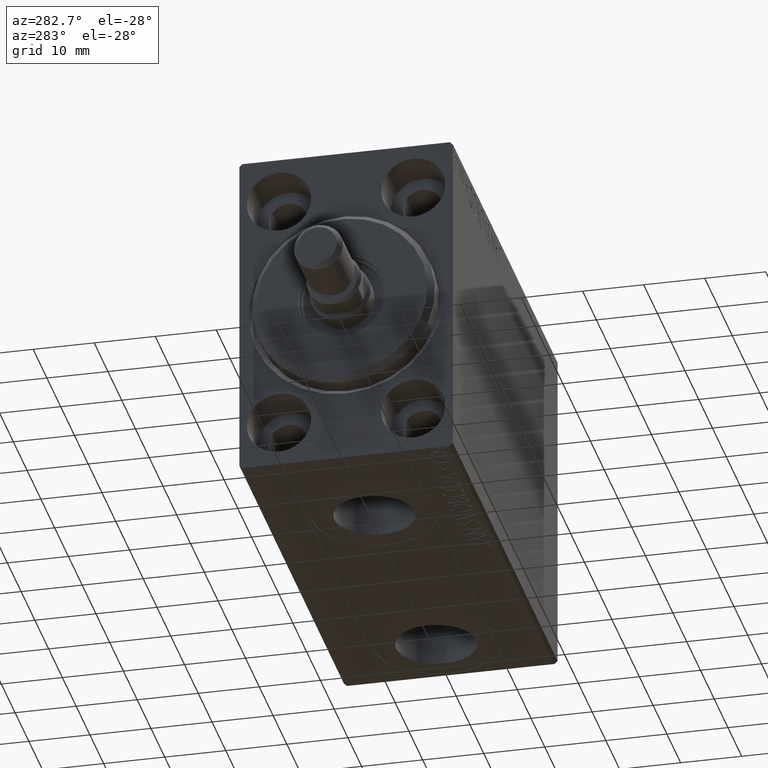
[diagram: clean part render]
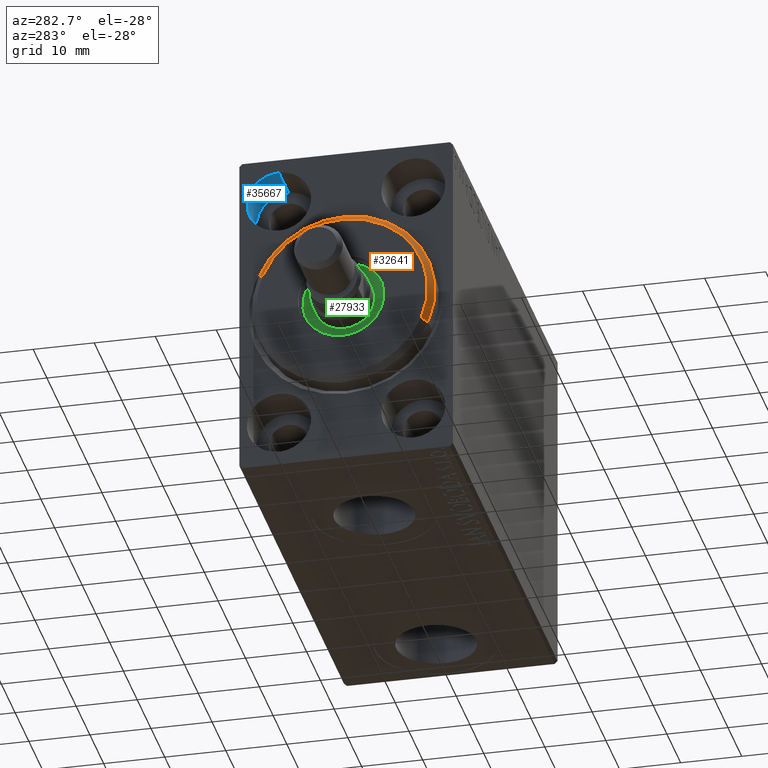
[diagram: same view with three faces highlighted in distinct colors, each labeled with its STEP entity id]
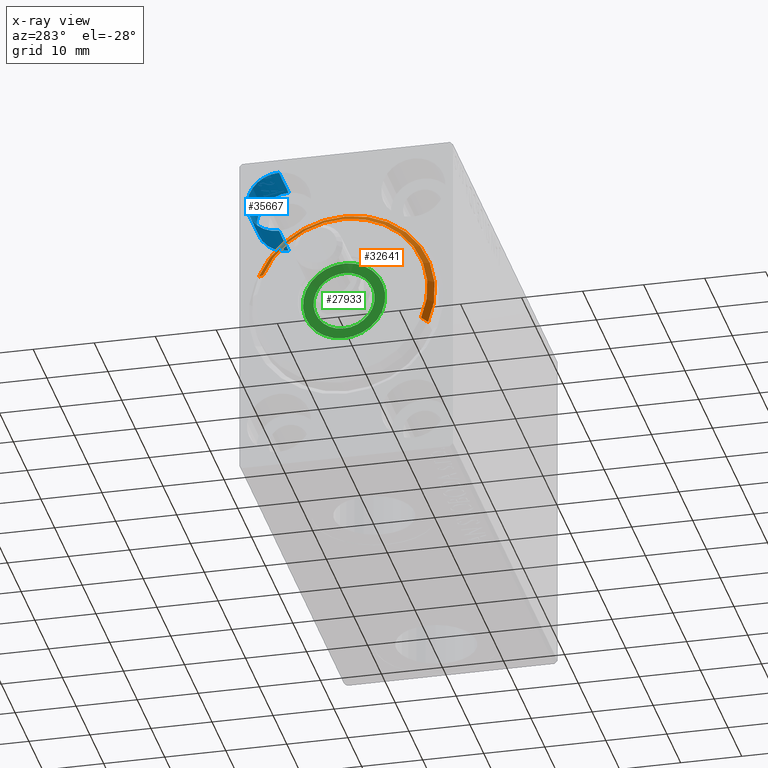
[diagram: x-ray of the same camera — body ghosted, the three highlighted faces saturated]
A machine part, auxiliary view with three faces highlighted in distinct colors.
The next image is the same camera in x-ray (body ghosted, the three faces saturated) — at least one of them is partly hidden behind the body in this view.
Their STEP definitions:

[orange] entity #32641 — the highlighted conical surface has half-angle 45 deg.
#913 = DIRECTION ( 'NONE',  ( 1.000000000000000000, -0.000000000000000000, 0.000000000000000000 ) ) ;
#2839 = LINE ( 'NONE', #16099, #33953 ) ;
#3835 = DIRECTION ( 'NONE',  ( -1.000000000000000000, 0.000000000000000000, 0.000000000000000000 ) ) ;
#4074 = CARTESIAN_POINT ( 'NONE',  ( 3.000000000000000000, 0.000000000000000000, 13.99999999999999645 ) ) ;
#4712 = EDGE_CURVE ( 'NONE', #33084, #22905, #41149, .T. ) ;
#5246 = ORIENTED_EDGE ( 'NONE', *, *, #10978, .F. ) ;
#6444 = AXIS2_PLACEMENT_3D ( 'NONE', #24966, #913, #14618 ) ;
#6449 = CIRCLE ( 'NONE', #7878, 15.00000000000000000 ) ;
#7878 = AXIS2_PLACEMENT_3D ( 'NONE', #20460, #3835, #24049 ) ;
#10978 = EDGE_CURVE ( 'NONE', #17280, #22905, #6449, .T. ) ;
#13729 = EDGE_CURVE ( 'NONE', #33084, #30123, #15770, .T. ) ;
#14618 = DIRECTION ( 'NONE',  ( 0.000000000000000000, 0.000000000000000000, -1.000000000000000000 ) ) ;
#15770 = CIRCLE ( 'NONE', #6444, 13.99999999999999645 ) ;
#16099 = CARTESIAN_POINT ( 'NONE',  ( 3.000000000000000000, 1.714505518806294244E-15, -13.99999999999999645 ) ) ;
#16146 = CONICAL_SURFACE ( 'NONE', #31207, 13.99999999999999645, 0.7853981633974473908 ) ;
#16354 = VECTOR ( 'NONE', #27845, 999.9999999999998863 ) ;
#17280 = VERTEX_POINT ( 'NONE', #29888 ) ;
#20460 = CARTESIAN_POINT ( 'NONE',  ( 1.999999999999995781, 0.000000000000000000, 0.000000000000000000 ) ) ;
#20817 = EDGE_CURVE ( 'NONE', #30123, #17280, #2839, .T. ) ;
#21342 = CARTESIAN_POINT ( 'NONE',  ( 3.000000000000000000, 1.775737858763662015E-15, -13.99999999999999645 ) ) ;
#22141 = DIRECTION ( 'NONE',  ( 0.000000000000000000, 0.000000000000000000, 1.000000000000000000 ) ) ;
#22905 = VERTEX_POINT ( 'NONE', #28284 ) ;
#23338 = EDGE_LOOP ( 'NONE', ( #40914, #29190, #42475, #5246 ) ) ;
#24049 = DIRECTION ( 'NONE',  ( 0.000000000000000000, 0.000000000000000000, -1.000000000000000000 ) ) ;
#24966 = CARTESIAN_POINT ( 'NONE',  ( 3.000000000000000000, 0.000000000000000000, 0.000000000000000000 ) ) ;
#25060 = CARTESIAN_POINT ( 'NONE',  ( 3.000000000000000000, 0.000000000000000000, 0.000000000000000000 ) ) ;
#27845 = DIRECTION ( 'NONE',  ( -0.7071067811865482389, 0.000000000000000000, 0.7071067811865469066 ) ) ;
#28284 = CARTESIAN_POINT ( 'NONE',  ( 1.999999999999995781, 0.000000000000000000, 15.00000000000000000 ) ) ;
#28669 = DIRECTION ( 'NONE',  ( -1.000000000000000000, 0.000000000000000000, 0.000000000000000000 ) ) ;
#29190 = ORIENTED_EDGE ( 'NONE', *, *, #13729, .F. ) ;
#29888 = CARTESIAN_POINT ( 'NONE',  ( 1.999999999999995781, 1.836970198721029589E-15, -15.00000000000000000 ) ) ;
#30123 = VERTEX_POINT ( 'NONE', #21342 ) ;
#30272 = DIRECTION ( 'NONE',  ( -0.7071067811865482389, 8.659560562354926695E-17, -0.7071067811865469066 ) ) ;
#31207 = AXIS2_PLACEMENT_3D ( 'NONE', #25060, #28669, #22141 ) ;
#32044 = FACE_OUTER_BOUND ( 'NONE', #23338, .T. ) ;
#32641 = ADVANCED_FACE ( 'NONE', ( #32044 ), #16146, .T. ) ;
#33084 = VERTEX_POINT ( 'NONE', #4074 ) ;
#33953 = VECTOR ( 'NONE', #30272, 999.9999999999998863 ) ;
#38434 = CARTESIAN_POINT ( 'NONE',  ( 3.000000000000000000, 0.000000000000000000, 13.99999999999999645 ) ) ;
#40914 = ORIENTED_EDGE ( 'NONE', *, *, #20817, .F. ) ;
#41149 = LINE ( 'NONE', #38434, #16354 ) ;
#42475 = ORIENTED_EDGE ( 'NONE', *, *, #4712, .T. ) ;

[blue] entity #35667 — the highlighted cylindrical surface (edge-blend (fillet) strip) has radius 5.25 mm, axis along (-1, -0, -0).
#185 = CARTESIAN_POINT ( 'NONE',  ( 7.000000000000000000, 11.00000000000000355, 20.00000000000000000 ) ) ;
#3084 = EDGE_CURVE ( 'NONE', #6936, #16656, #39796, .T. ) ;
#3569 = CYLINDRICAL_SURFACE ( 'NONE', #23364, 5.250000000000000888 ) ;
#3786 = FACE_OUTER_BOUND ( 'NONE', #15516, .T. ) ;
#4748 = ORIENTED_EDGE ( 'NONE', *, *, #3084, .T. ) ;
#5568 = DIRECTION ( 'NONE',  ( -1.000000000000000000, -0.000000000000000000, -0.000000000000000000 ) ) ;
#6075 = DIRECTION ( 'NONE',  ( 0.000000000000000000, 0.000000000000000000, 1.000000000000000000 ) ) ;
#6394 = EDGE_CURVE ( 'NONE', #6936, #31488, #35062, .T. ) ;
#6936 = VERTEX_POINT ( 'NONE', #10042 ) ;
#7579 = AXIS2_PLACEMENT_3D ( 'NONE', #21392, #27930, #30872 ) ;
#8492 = CARTESIAN_POINT ( 'NONE',  ( 7.000000000000000000, 11.00000000000000355, 14.75000000000000000 ) ) ;
#10042 = CARTESIAN_POINT ( 'NONE',  ( 7.000000000000000000, 11.00000000000000355, 25.25000000000000000 ) ) ;
#11703 = ORIENTED_EDGE ( 'NONE', *, *, #6394, .F. ) ;
#12299 = LINE ( 'NONE', #29617, #24852 ) ;
#12787 = CARTESIAN_POINT ( 'NONE',  ( 7.000000000000000000, 11.00000000000000355, 25.25000000000000000 ) ) ;
#15516 = EDGE_LOOP ( 'NONE', ( #21131, #11703, #4748, #20191 ) ) ;
#16656 = VERTEX_POINT ( 'NONE', #31744 ) ;
#19086 = DIRECTION ( 'NONE',  ( -1.000000000000000000, -0.000000000000000000, -0.000000000000000000 ) ) ;
#20191 = ORIENTED_EDGE ( 'NONE', *, *, #35730, .T. ) ;
#21131 = ORIENTED_EDGE ( 'NONE', *, *, #41868, .F. ) ;
#21392 = CARTESIAN_POINT ( 'NONE',  ( 0.000000000000000000, 11.00000000000000355, 20.00000000000000000 ) ) ;
#23364 = AXIS2_PLACEMENT_3D ( 'NONE', #185, #31656, #31875 ) ;
#24852 = VECTOR ( 'NONE', #5568, 1000.000000000000000 ) ;
#26970 = CIRCLE ( 'NONE', #7579, 5.250000000000000888 ) ;
#27930 = DIRECTION ( 'NONE',  ( -1.000000000000000000, 0.000000000000000000, 0.000000000000000000 ) ) ;
#27960 = CARTESIAN_POINT ( 'NONE',  ( 0.000000000000000000, 11.00000000000000355, 14.75000000000000000 ) ) ;
#29617 = CARTESIAN_POINT ( 'NONE',  ( 7.000000000000000000, 11.00000000000000355, 14.75000000000000000 ) ) ;
#30341 = CARTESIAN_POINT ( 'NONE',  ( 7.000000000000000000, 11.00000000000000355, 20.00000000000000000 ) ) ;
#30872 = DIRECTION ( 'NONE',  ( 0.000000000000000000, 0.000000000000000000, 1.000000000000000000 ) ) ;
#31488 = VERTEX_POINT ( 'NONE', #8492 ) ;
#31656 = DIRECTION ( 'NONE',  ( -1.000000000000000000, -0.000000000000000000, -0.000000000000000000 ) ) ;
#31744 = CARTESIAN_POINT ( 'NONE',  ( 0.000000000000000000, 11.00000000000000355, 25.25000000000000000 ) ) ;
#31875 = DIRECTION ( 'NONE',  ( 0.000000000000000000, 0.000000000000000000, 1.000000000000000000 ) ) ;
#35062 = CIRCLE ( 'NONE', #42276, 5.250000000000000888 ) ;
#35667 = ADVANCED_FACE ( 'NONE', ( #3786 ), #3569, .F. ) ;
#35730 = EDGE_CURVE ( 'NONE', #16656, #38854, #26970, .T. ) ;
#36432 = VECTOR ( 'NONE', #19086, 1000.000000000000000 ) ;
#38854 = VERTEX_POINT ( 'NONE', #27960 ) ;
#39796 = LINE ( 'NONE', #12787, #36432 ) ;
#41868 = EDGE_CURVE ( 'NONE', #31488, #38854, #12299, .T. ) ;
#42276 = AXIS2_PLACEMENT_3D ( 'NONE', #30341, #43870, #6075 ) ;
#43870 = DIRECTION ( 'NONE',  ( -1.000000000000000000, 0.000000000000000000, 0.000000000000000000 ) ) ;

[green] entity #27933 — the highlighted planar face has unit normal (-1, 0, 0).
#102 = CARTESIAN_POINT ( 'NONE',  ( 1.500000000000000000, 0.000000000000000000, 0.000000000000000000 ) ) ;
#946 = EDGE_LOOP ( 'NONE', ( #42084, #1855 ) ) ;
#1684 = AXIS2_PLACEMENT_3D ( 'NONE', #102, #20550, #13816 ) ;
#1855 = ORIENTED_EDGE ( 'NONE', *, *, #8311, .T. ) ;
#2358 = VERTEX_POINT ( 'NONE', #11323 ) ;
#2560 = VERTEX_POINT ( 'NONE', #13976 ) ;
#3358 = DIRECTION ( 'NONE',  ( 1.000000000000000000, 0.000000000000000000, 0.000000000000000000 ) ) ;
#3489 = FACE_BOUND ( 'NONE', #37232, .T. ) ;
#3638 = CARTESIAN_POINT ( 'NONE',  ( 1.500000000000000000, 0.000000000000000000, 0.000000000000000000 ) ) ;
#3703 = PLANE ( 'NONE',  #1684 ) ;
#4047 = VERTEX_POINT ( 'NONE', #22200 ) ;
#6429 = FACE_OUTER_BOUND ( 'NONE', #946, .T. ) ;
#6796 = DIRECTION ( 'NONE',  ( 0.000000000000000000, 0.000000000000000000, -1.000000000000000000 ) ) ;
#8311 = EDGE_CURVE ( 'NONE', #4047, #29136, #29370, .T. ) ;
#9871 = AXIS2_PLACEMENT_3D ( 'NONE', #11890, #28982, #18861 ) ;
#10100 = CARTESIAN_POINT ( 'NONE',  ( 1.500000000000000000, 0.000000000000000000, 0.000000000000000000 ) ) ;
#11323 = CARTESIAN_POINT ( 'NONE',  ( 1.499999999999999556, 0.000000000000000000, -5.000000000000000000 ) ) ;
#11890 = CARTESIAN_POINT ( 'NONE',  ( 1.499999999999999556, 0.000000000000000000, 0.000000000000000000 ) ) ;
#13299 = CIRCLE ( 'NONE', #31972, 6.750000000000000000 ) ;
#13465 = CIRCLE ( 'NONE', #15502, 5.000000000000000000 ) ;
#13816 = DIRECTION ( 'NONE',  ( 0.000000000000000000, 0.000000000000000000, -1.000000000000000000 ) ) ;
#13976 = CARTESIAN_POINT ( 'NONE',  ( 1.499999999999999556, 6.123233995736765296E-16, 5.000000000000000000 ) ) ;
#15502 = AXIS2_PLACEMENT_3D ( 'NONE', #22451, #32366, #36629 ) ;
#18861 = DIRECTION ( 'NONE',  ( 0.000000000000000000, 0.000000000000000000, -1.000000000000000000 ) ) ;
#20550 = DIRECTION ( 'NONE',  ( 1.000000000000000000, 0.000000000000000000, 0.000000000000000000 ) ) ;
#22200 = CARTESIAN_POINT ( 'NONE',  ( 1.500000000000000000, 8.266365894244632361E-16, -6.750000000000000000 ) ) ;
#22451 = CARTESIAN_POINT ( 'NONE',  ( 1.499999999999999556, 0.000000000000000000, 0.000000000000000000 ) ) ;
#27933 = ADVANCED_FACE ( 'NONE', ( #3489, #6429 ), #3703, .T. ) ;
#28982 = DIRECTION ( 'NONE',  ( 1.000000000000000000, 0.000000000000000000, 0.000000000000000000 ) ) ;
#29136 = VERTEX_POINT ( 'NONE', #37132 ) ;
#29370 = CIRCLE ( 'NONE', #36558, 6.750000000000000000 ) ;
#30071 = ORIENTED_EDGE ( 'NONE', *, *, #40823, .F. ) ;
#31972 = AXIS2_PLACEMENT_3D ( 'NONE', #10100, #3358, #40262 ) ;
#32366 = DIRECTION ( 'NONE',  ( 1.000000000000000000, 0.000000000000000000, 0.000000000000000000 ) ) ;
#33784 = EDGE_CURVE ( 'NONE', #29136, #4047, #13299, .T. ) ;
#36558 = AXIS2_PLACEMENT_3D ( 'NONE', #3638, #41200, #6796 ) ;
#36629 = DIRECTION ( 'NONE',  ( 0.000000000000000000, 0.000000000000000000, -1.000000000000000000 ) ) ;
#37132 = CARTESIAN_POINT ( 'NONE',  ( 1.500000000000000000, 0.000000000000000000, 6.750000000000000000 ) ) ;
#37232 = EDGE_LOOP ( 'NONE', ( #30071, #41122 ) ) ;
#40262 = DIRECTION ( 'NONE',  ( 0.000000000000000000, 0.000000000000000000, -1.000000000000000000 ) ) ;
#40307 = EDGE_CURVE ( 'NONE', #2560, #2358, #13465, .T. ) ;
#40823 = EDGE_CURVE ( 'NONE', #2358, #2560, #42830, .T. ) ;
#41122 = ORIENTED_EDGE ( 'NONE', *, *, #40307, .F. ) ;
#41200 = DIRECTION ( 'NONE',  ( 1.000000000000000000, 0.000000000000000000, 0.000000000000000000 ) ) ;
#42084 = ORIENTED_EDGE ( 'NONE', *, *, #33784, .T. ) ;
#42830 = CIRCLE ( 'NONE', #9871, 5.000000000000000000 ) ;